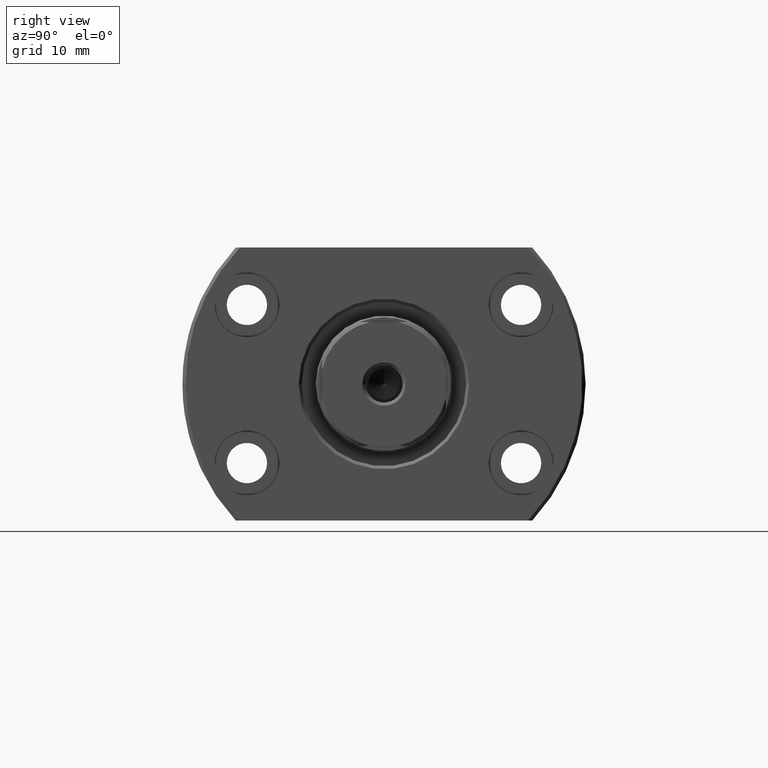
[diagram: clean part render]
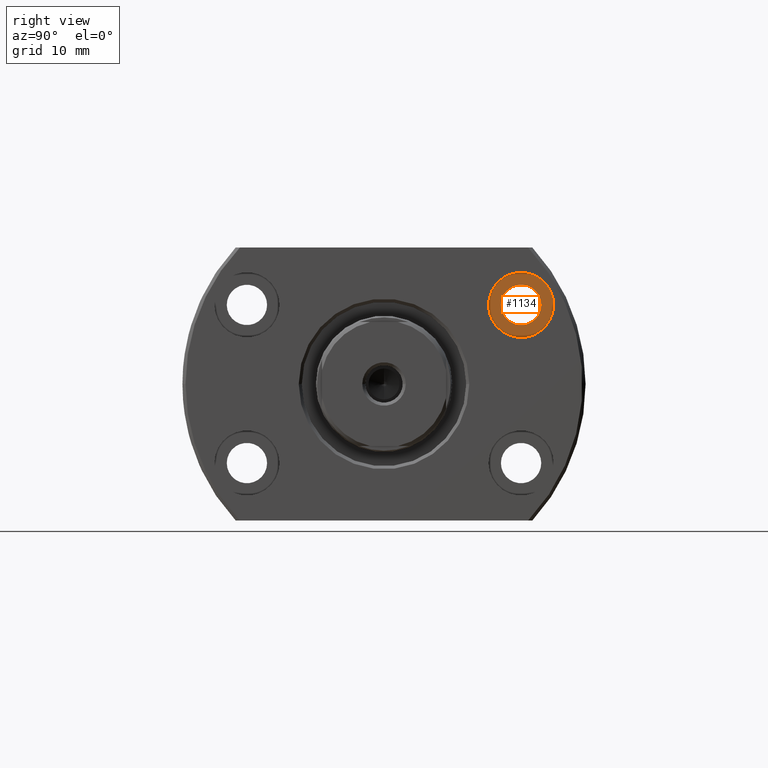
[diagram: same view with one face highlighted and labeled with its STEP entity id]
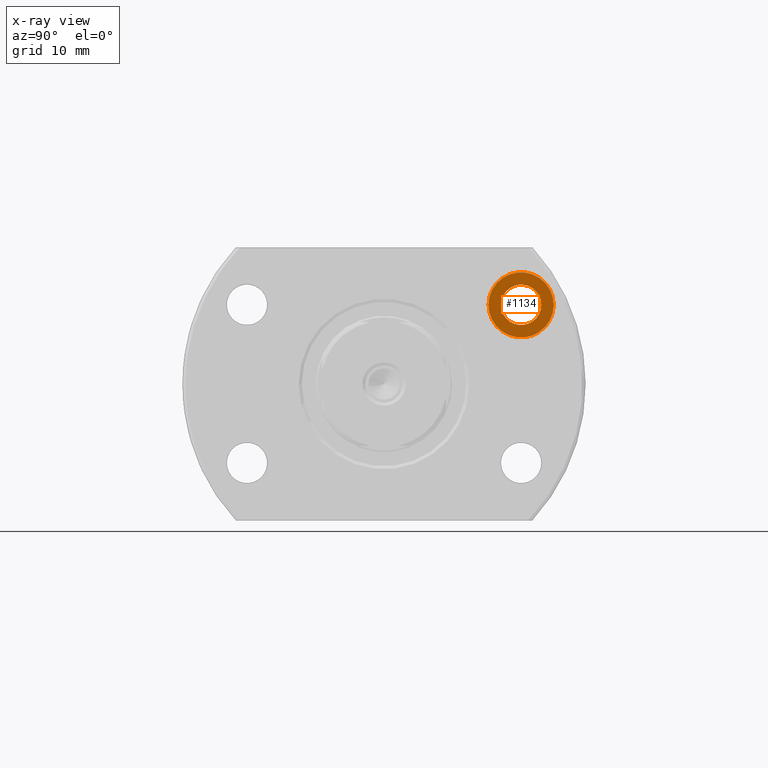
[diagram: x-ray of the same camera — body ghosted, the highlighted face saturated]
A machine part, right view. The second image highlights one B-rep face of the part: STEP entity #1134.
The next image is the same camera in x-ray: the body ghosted, the highlighted face saturated — about 0% of this face is hidden behind the body in this view.
In plain terms, the highlighted planar face has unit normal (1, -0, 0).
Its self-contained STEP definition (entity closure, byte-faithful):
#23 = CARTESIAN_POINT ( 'NONE',  ( 25.00000000000048672, 16.84999999999928022, 12.74999999999999822 ) ) ;
#26 = VERTEX_POINT ( 'NONE', #23 ) ;
#109 = AXIS2_PLACEMENT_3D ( 'NONE', #797, #1773, #471 ) ;
#130 = PLANE ( 'NONE',  #2229 ) ;
#198 = VERTEX_POINT ( 'NONE', #2732 ) ;
#226 = FACE_OUTER_BOUND ( 'NONE', #1262, .T. ) ;
#327 = ORIENTED_EDGE ( 'NONE', *, *, #2872, .F. ) ;
#344 = AXIS2_PLACEMENT_3D ( 'NONE', #1316, #1099, #3039 ) ;
#355 = CARTESIAN_POINT ( 'NONE',  ( 25.00000000000054712, 18.84999999999928022, 12.74999999999999822 ) ) ;
#444 = DIRECTION ( 'NONE',  ( 1.000000000000000000, -2.886466111666351885E-14, 0.000000000000000000 ) ) ;
#471 = DIRECTION ( 'NONE',  ( 2.882309775469156694E-14, 1.000000000000000000, 0.000000000000000000 ) ) ;
#482 = ORIENTED_EDGE ( 'NONE', *, *, #2310, .F. ) ;
#621 = AXIS2_PLACEMENT_3D ( 'NONE', #2952, #444, #725 ) ;
#636 = CIRCLE ( 'NONE', #109, 3.249999999999999556 ) ;
#658 = CARTESIAN_POINT ( 'NONE',  ( 25.00000000000063949, 22.09999999999928022, 12.74999999999999822 ) ) ;
#688 = DIRECTION ( 'NONE',  ( 2.907726969256361977E-14, 1.000000000000000000, 0.000000000000000000 ) ) ;
#725 = DIRECTION ( 'NONE',  ( 2.907726969256361977E-14, 1.000000000000000000, 0.000000000000000000 ) ) ;
#728 = AXIS2_PLACEMENT_3D ( 'NONE', #1351, #936, #688 ) ;
#739 = VERTEX_POINT ( 'NONE', #2451 ) ;
#797 = CARTESIAN_POINT ( 'NONE',  ( 25.00000000000063949, 22.09999999999928022, 12.74999999999999822 ) ) ;
#863 = CIRCLE ( 'NONE', #344, 3.249999999999999556 ) ;
#868 = DIRECTION ( 'NONE',  ( 2.886466111666351885E-14, 1.000000000000000000, 0.000000000000000000 ) ) ;
#900 = DIRECTION ( 'NONE',  ( 1.000000000000000000, -2.886466111666351885E-14, 0.000000000000000000 ) ) ;
#932 = EDGE_CURVE ( 'NONE', #26, #739, #2489, .T. ) ;
#936 = DIRECTION ( 'NONE',  ( 1.000000000000000000, -2.886466111666351885E-14, 0.000000000000000000 ) ) ;
#969 = FACE_BOUND ( 'NONE', #1911, .T. ) ;
#1099 = DIRECTION ( 'NONE',  ( 1.000000000000000000, -2.886466111666351885E-14, 0.000000000000000000 ) ) ;
#1134 = ADVANCED_FACE ( 'NONE', ( #969, #226 ), #130, .T. ) ;
#1262 = EDGE_LOOP ( 'NONE', ( #2438, #2046 ) ) ;
#1316 = CARTESIAN_POINT ( 'NONE',  ( 25.00000000000063949, 22.09999999999928022, 12.74999999999999822 ) ) ;
#1351 = CARTESIAN_POINT ( 'NONE',  ( 25.00000000000063949, 22.09999999999928022, 12.74999999999999822 ) ) ;
#1773 = DIRECTION ( 'NONE',  ( 1.000000000000000000, -2.886466111666351885E-14, 0.000000000000000000 ) ) ;
#1814 = EDGE_CURVE ( 'NONE', #739, #26, #3063, .T. ) ;
#1911 = EDGE_LOOP ( 'NONE', ( #482, #327 ) ) ;
#2046 = ORIENTED_EDGE ( 'NONE', *, *, #932, .T. ) ;
#2229 = AXIS2_PLACEMENT_3D ( 'NONE', #658, #900, #868 ) ;
#2310 = EDGE_CURVE ( 'NONE', #198, #2499, #636, .T. ) ;
#2438 = ORIENTED_EDGE ( 'NONE', *, *, #1814, .T. ) ;
#2451 = CARTESIAN_POINT ( 'NONE',  ( 25.00000000000079226, 27.34999999999928022, 12.74999999999999822 ) ) ;
#2489 = CIRCLE ( 'NONE', #728, 5.250000000000000888 ) ;
#2499 = VERTEX_POINT ( 'NONE', #355 ) ;
#2732 = CARTESIAN_POINT ( 'NONE',  ( 25.00000000000073186, 25.34999999999928022, 12.74999999999999822 ) ) ;
#2872 = EDGE_CURVE ( 'NONE', #2499, #198, #863, .T. ) ;
#2952 = CARTESIAN_POINT ( 'NONE',  ( 25.00000000000063949, 22.09999999999928022, 12.74999999999999822 ) ) ;
#3039 = DIRECTION ( 'NONE',  ( 2.882309775469156694E-14, 1.000000000000000000, 0.000000000000000000 ) ) ;
#3063 = CIRCLE ( 'NONE', #621, 5.250000000000000888 ) ;